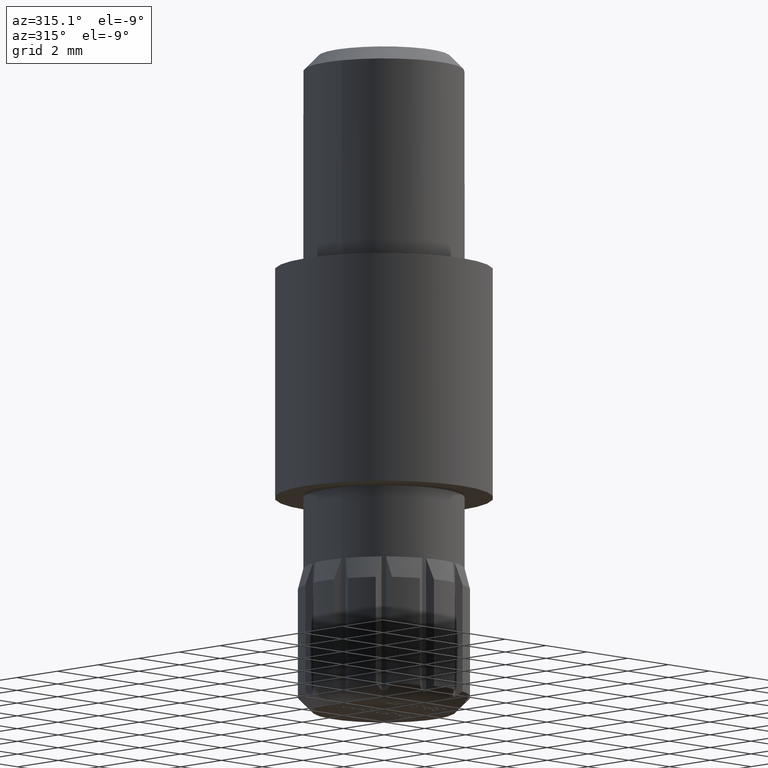
[diagram: clean part render]
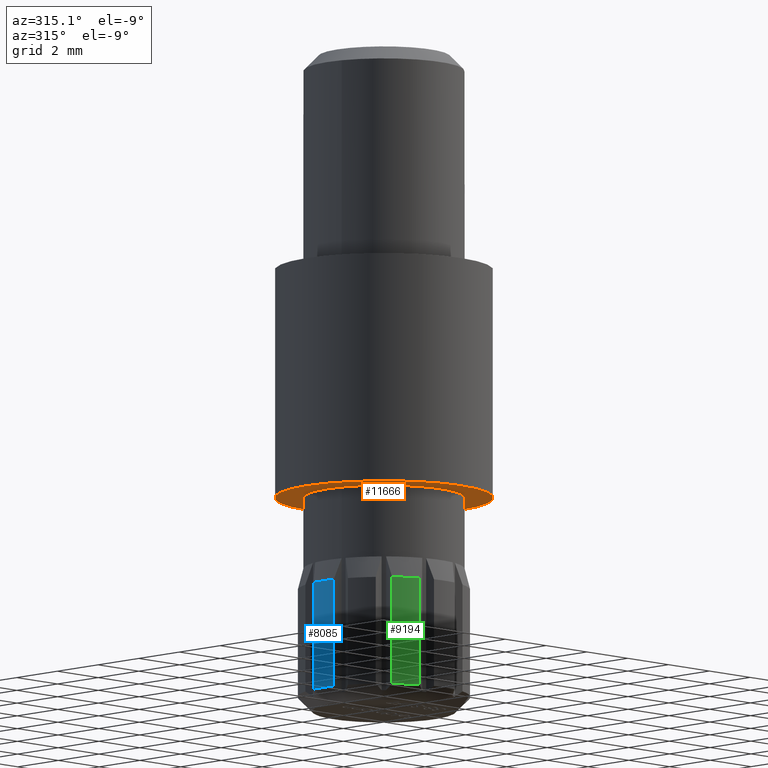
[diagram: same view with three faces highlighted in distinct colors, each labeled with its STEP entity id]
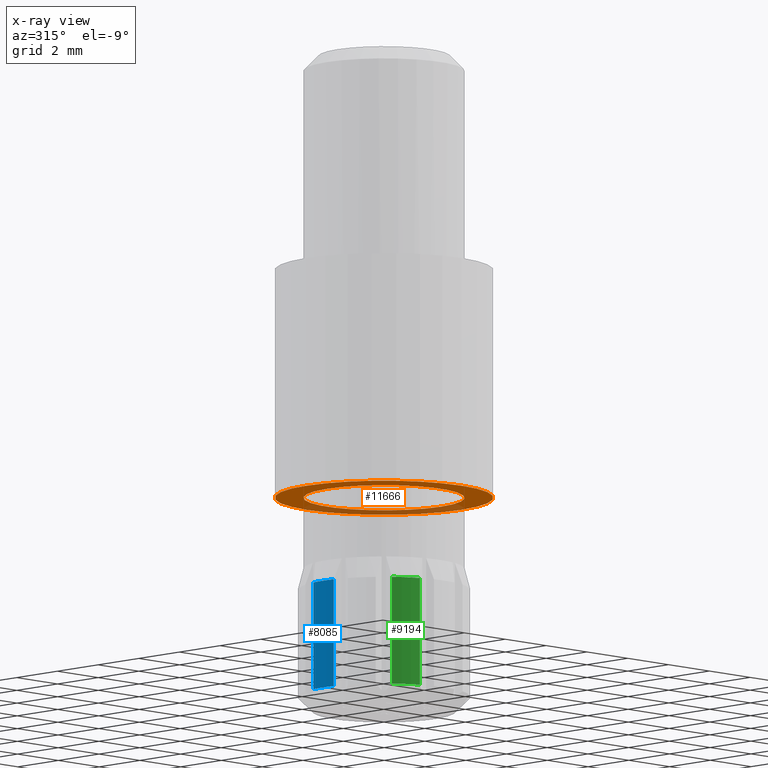
[diagram: x-ray of the same camera — body ghosted, the three highlighted faces saturated]
A machine part, auxiliary view with three faces highlighted in distinct colors.
The next image is the same camera in x-ray (body ghosted, the three faces saturated) — at least one of them is partly hidden behind the body in this view.
Their STEP definitions:

[orange] entity #11666 — the highlighted planar face has unit normal (0, 0, 1).
#27 = DIRECTION ( 'NONE',  ( 0.000000000000000000, 0.000000000000000000, 1.000000000000000000 ) ) ;
#766 = DIRECTION ( 'NONE',  ( 1.000000000000000000, 0.000000000000000000, -0.000000000000000000 ) ) ;
#1001 = CARTESIAN_POINT ( 'NONE',  ( 0.000000000000000000, 0.000000000000000000, 0.000000000000000000 ) ) ;
#1040 = CARTESIAN_POINT ( 'NONE',  ( 3.799999999999999822, 0.000000000000000000, 0.000000000000000000 ) ) ;
#1487 = VERTEX_POINT ( 'NONE', #3048 ) ;
#1571 = ORIENTED_EDGE ( 'NONE', *, *, #12454, .F. ) ;
#2957 = DIRECTION ( 'NONE',  ( 1.000000000000000000, 0.000000000000000000, 0.000000000000000000 ) ) ;
#3035 = ORIENTED_EDGE ( 'NONE', *, *, #13109, .T. ) ;
#3048 = CARTESIAN_POINT ( 'NONE',  ( 2.799999999999999822, 0.000000000000000000, 0.000000000000000000 ) ) ;
#3760 = EDGE_LOOP ( 'NONE', ( #3035 ) ) ;
#5380 = AXIS2_PLACEMENT_3D ( 'NONE', #9668, #12799, #766 ) ;
#5571 = FACE_OUTER_BOUND ( 'NONE', #7888, .T. ) ;
#5719 = FACE_BOUND ( 'NONE', #3760, .T. ) ;
#7514 = DIRECTION ( 'NONE',  ( 0.000000000000000000, 0.000000000000000000, 1.000000000000000000 ) ) ;
#7755 = CIRCLE ( 'NONE', #10944, 3.799999999999999822 ) ;
#7888 = EDGE_LOOP ( 'NONE', ( #1571 ) ) ;
#8445 = CARTESIAN_POINT ( 'NONE',  ( 0.000000000000000000, 0.000000000000000000, 0.000000000000000000 ) ) ;
#9668 = CARTESIAN_POINT ( 'NONE',  ( 0.000000000000000000, 0.000000000000000000, 0.000000000000000000 ) ) ;
#10687 = AXIS2_PLACEMENT_3D ( 'NONE', #1001, #27, #2957 ) ;
#10944 = AXIS2_PLACEMENT_3D ( 'NONE', #8445, #7514, #11458 ) ;
#11249 = VERTEX_POINT ( 'NONE', #1040 ) ;
#11458 = DIRECTION ( 'NONE',  ( 1.000000000000000000, 0.000000000000000000, 0.000000000000000000 ) ) ;
#11666 = ADVANCED_FACE ( 'NONE', ( #5571, #5719 ), #11751, .F. ) ;
#11751 = PLANE ( 'NONE',  #5380 ) ;
#12202 = CIRCLE ( 'NONE', #10687, 2.799999999999999822 ) ;
#12454 = EDGE_CURVE ( 'NONE', #11249, #11249, #7755, .T. ) ;
#12799 = DIRECTION ( 'NONE',  ( 0.000000000000000000, 0.000000000000000000, 1.000000000000000000 ) ) ;
#13109 = EDGE_CURVE ( 'NONE', #1487, #1487, #12202, .T. ) ;

[blue] entity #8085 — the highlighted cylindrical surface (partial cylindrical patch) has radius 3 mm, axis along (0, 0, -1).
#363 = DIRECTION ( 'NONE',  ( -0.000000000000000000, -0.000000000000000000, -1.000000000000000000 ) ) ;
#457 = CARTESIAN_POINT ( 'NONE',  ( 0.000000000000000000, 0.000000000000000000, 4.250000000000000000 ) ) ;
#549 = DIRECTION ( 'NONE',  ( -0.000000000000000000, -0.000000000000000000, -1.000000000000000000 ) ) ;
#1319 = AXIS2_PLACEMENT_3D ( 'NONE', #4536, #549, #4573 ) ;
#1380 = EDGE_CURVE ( 'NONE', #9950, #13037, #3492, .T. ) ;
#1673 = CARTESIAN_POINT ( 'NONE',  ( 0.000000000000000000, 0.000000000000000000, 5.000000000000000000 ) ) ;
#1863 = CARTESIAN_POINT ( 'NONE',  ( -2.958039891549802736, 0.5000000000000307532, 0.4999999999999998890 ) ) ;
#1960 = DIRECTION ( 'NONE',  ( 0.000000000000000000, 0.000000000000000000, -1.000000000000000000 ) ) ;
#2032 = AXIS2_PLACEMENT_3D ( 'NONE', #1673, #7638, #3776 ) ;
#2307 = CIRCLE ( 'NONE', #1319, 3.000000000000000000 ) ;
#2605 = CYLINDRICAL_SURFACE ( 'NONE', #2032, 3.000000000000000444 ) ;
#2630 = ORIENTED_EDGE ( 'NONE', *, *, #8432, .F. ) ;
#3492 = CIRCLE ( 'NONE', #11693, 3.000000000000000888 ) ;
#3776 = DIRECTION ( 'NONE',  ( -1.000000000000000000, 0.000000000000000000, 0.000000000000000000 ) ) ;
#4244 = CARTESIAN_POINT ( 'NONE',  ( -2.958039891549813838, -0.4999999999999698574, 0.4999999999999998890 ) ) ;
#4536 = CARTESIAN_POINT ( 'NONE',  ( 0.000000000000000000, 0.000000000000000000, 0.4999999999999998890 ) ) ;
#4573 = DIRECTION ( 'NONE',  ( -1.000000000000000000, 0.000000000000000000, 0.000000000000000000 ) ) ;
#5030 = ORIENTED_EDGE ( 'NONE', *, *, #1380, .T. ) ;
#5627 = CARTESIAN_POINT ( 'NONE',  ( -2.958039891549814726, -0.4999999999999692468, 4.250000000000000000 ) ) ;
#5764 = EDGE_CURVE ( 'NONE', #13037, #9568, #11131, .T. ) ;
#6258 = EDGE_LOOP ( 'NONE', ( #5030, #9501, #7008, #2630 ) ) ;
#6409 = VECTOR ( 'NONE', #1960, 1000.000000000000000 ) ;
#6540 = EDGE_CURVE ( 'NONE', #7540, #9568, #2307, .T. ) ;
#7008 = ORIENTED_EDGE ( 'NONE', *, *, #6540, .F. ) ;
#7165 = FACE_OUTER_BOUND ( 'NONE', #6258, .T. ) ;
#7407 = DIRECTION ( 'NONE',  ( -1.000000000000000000, 0.000000000000000000, 0.000000000000000000 ) ) ;
#7540 = VERTEX_POINT ( 'NONE', #4244 ) ;
#7638 = DIRECTION ( 'NONE',  ( 0.000000000000000000, 0.000000000000000000, -1.000000000000000000 ) ) ;
#7781 = CARTESIAN_POINT ( 'NONE',  ( -2.958039891549803180, 0.5000000000000308642, 5.000000000000000000 ) ) ;
#8085 = ADVANCED_FACE ( 'NONE', ( #7165 ), #2605, .T. ) ;
#8432 = EDGE_CURVE ( 'NONE', #9950, #7540, #11269, .T. ) ;
#8642 = DIRECTION ( 'NONE',  ( 0.000000000000000000, 0.000000000000000000, -1.000000000000000000 ) ) ;
#9501 = ORIENTED_EDGE ( 'NONE', *, *, #5764, .T. ) ;
#9568 = VERTEX_POINT ( 'NONE', #1863 ) ;
#9950 = VERTEX_POINT ( 'NONE', #5627 ) ;
#11099 = CARTESIAN_POINT ( 'NONE',  ( -2.958039891549803624, 0.5000000000000308642, 4.250000000000000000 ) ) ;
#11131 = LINE ( 'NONE', #7781, #6409 ) ;
#11269 = LINE ( 'NONE', #11717, #12236 ) ;
#11693 = AXIS2_PLACEMENT_3D ( 'NONE', #457, #363, #7407 ) ;
#11717 = CARTESIAN_POINT ( 'NONE',  ( -2.958039891549813394, -0.4999999999999691358, 5.000000000000000000 ) ) ;
#12236 = VECTOR ( 'NONE', #8642, 1000.000000000000000 ) ;
#13037 = VERTEX_POINT ( 'NONE', #11099 ) ;

[green] entity #9194 — the highlighted cylindrical surface (partial cylindrical patch) has radius 3 mm, axis along (0, 0, -1).
#450 = CIRCLE ( 'NONE', #11537, 3.000000000000000000 ) ;
#913 = DIRECTION ( 'NONE',  ( -1.000000000000000000, 0.000000000000000000, 0.000000000000000000 ) ) ;
#1183 = VERTEX_POINT ( 'NONE', #10016 ) ;
#2344 = LINE ( 'NONE', #9525, #2458 ) ;
#2458 = VECTOR ( 'NONE', #9426, 1000.000000000000000 ) ;
#3003 = CARTESIAN_POINT ( 'NONE',  ( -1.912032647667142538, -2.311737691489884394, 5.000000000000000000 ) ) ;
#3159 = ORIENTED_EDGE ( 'NONE', *, *, #13021, .T. ) ;
#3273 = CARTESIAN_POINT ( 'NONE',  ( -1.046007243882709048, -2.811737691489891500, 4.250000000000000000 ) ) ;
#3374 = EDGE_CURVE ( 'NONE', #10664, #1183, #450, .T. ) ;
#3392 = CIRCLE ( 'NONE', #10079, 3.000000000000000888 ) ;
#3689 = LINE ( 'NONE', #3003, #7454 ) ;
#5439 = VERTEX_POINT ( 'NONE', #3273 ) ;
#5752 = CYLINDRICAL_SURFACE ( 'NONE', #11927, 3.000000000000000444 ) ;
#5963 = DIRECTION ( 'NONE',  ( -1.000000000000000000, 0.000000000000000000, 0.000000000000000000 ) ) ;
#6930 = DIRECTION ( 'NONE',  ( 0.000000000000000000, 0.000000000000000000, -1.000000000000000000 ) ) ;
#7454 = VECTOR ( 'NONE', #12167, 1000.000000000000000 ) ;
#8025 = ORIENTED_EDGE ( 'NONE', *, *, #3374, .F. ) ;
#8111 = CARTESIAN_POINT ( 'NONE',  ( 0.000000000000000000, 0.000000000000000000, 0.4999999999999998890 ) ) ;
#9052 = CARTESIAN_POINT ( 'NONE',  ( 0.000000000000000000, 0.000000000000000000, 4.250000000000000000 ) ) ;
#9194 = ADVANCED_FACE ( 'NONE', ( #9366 ), #5752, .T. ) ;
#9366 = FACE_OUTER_BOUND ( 'NONE', #12362, .T. ) ;
#9426 = DIRECTION ( 'NONE',  ( 0.000000000000000000, 0.000000000000000000, -1.000000000000000000 ) ) ;
#9525 = CARTESIAN_POINT ( 'NONE',  ( -1.046007243882707716, -2.811737691489891944, 5.000000000000000000 ) ) ;
#10016 = CARTESIAN_POINT ( 'NONE',  ( -1.912032647667142315, -2.311737691489883950, 0.4999999999999998890 ) ) ;
#10079 = AXIS2_PLACEMENT_3D ( 'NONE', #9052, #12134, #11021 ) ;
#10159 = ORIENTED_EDGE ( 'NONE', *, *, #10348, .T. ) ;
#10348 = EDGE_CURVE ( 'NONE', #5439, #10881, #3392, .T. ) ;
#10664 = VERTEX_POINT ( 'NONE', #10911 ) ;
#10670 = ORIENTED_EDGE ( 'NONE', *, *, #12180, .F. ) ;
#10881 = VERTEX_POINT ( 'NONE', #11488 ) ;
#10911 = CARTESIAN_POINT ( 'NONE',  ( -1.046007243882707716, -2.811737691489891500, 0.4999999999999998890 ) ) ;
#11021 = DIRECTION ( 'NONE',  ( -1.000000000000000000, 0.000000000000000000, 0.000000000000000000 ) ) ;
#11036 = DIRECTION ( 'NONE',  ( -0.000000000000000000, -0.000000000000000000, -1.000000000000000000 ) ) ;
#11488 = CARTESIAN_POINT ( 'NONE',  ( -1.912032647667142760, -2.311737691489884394, 4.250000000000000000 ) ) ;
#11537 = AXIS2_PLACEMENT_3D ( 'NONE', #8111, #11036, #5963 ) ;
#11927 = AXIS2_PLACEMENT_3D ( 'NONE', #12990, #6930, #913 ) ;
#12134 = DIRECTION ( 'NONE',  ( -0.000000000000000000, -0.000000000000000000, -1.000000000000000000 ) ) ;
#12167 = DIRECTION ( 'NONE',  ( 0.000000000000000000, 0.000000000000000000, -1.000000000000000000 ) ) ;
#12180 = EDGE_CURVE ( 'NONE', #5439, #10664, #2344, .T. ) ;
#12362 = EDGE_LOOP ( 'NONE', ( #10159, #3159, #8025, #10670 ) ) ;
#12990 = CARTESIAN_POINT ( 'NONE',  ( 0.000000000000000000, 0.000000000000000000, 5.000000000000000000 ) ) ;
#13021 = EDGE_CURVE ( 'NONE', #10881, #1183, #3689, .T. ) ;